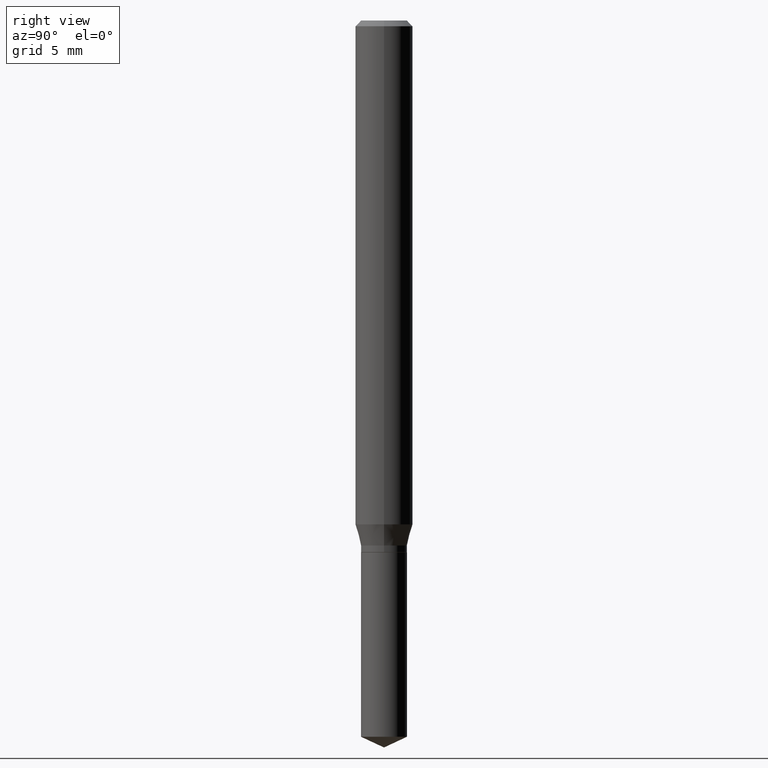
[diagram: clean part render]
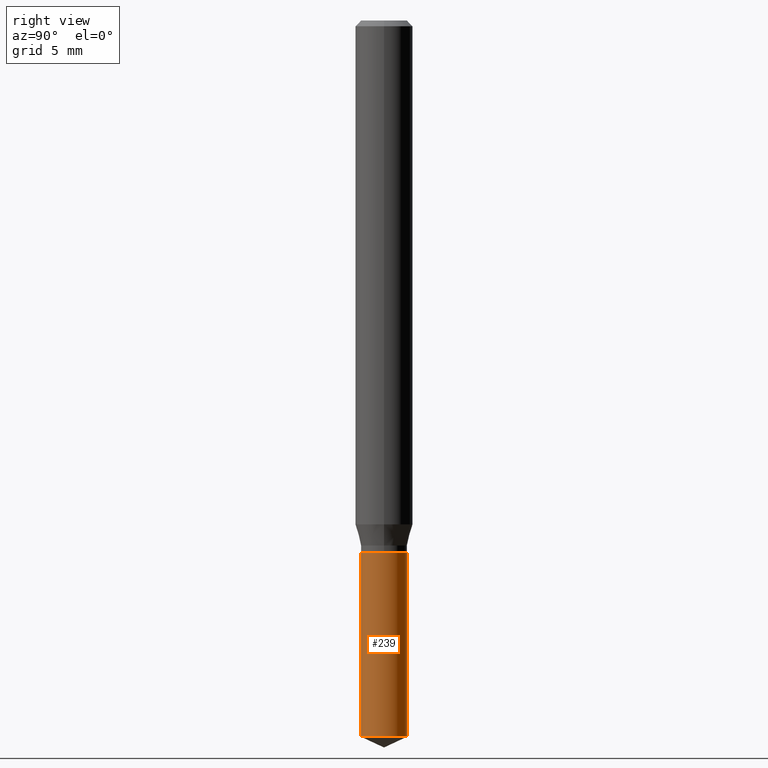
[diagram: same view with one face highlighted and labeled with its STEP entity id]
A machine part, right view. The second image highlights one B-rep face of the part: STEP entity #239.
In plain terms, the highlighted cylindrical surface (edge-blend (fillet) strip) has radius 1.2052 mm, axis along (-0, 0, 1).
Its self-contained STEP definition (entity closure, byte-faithful):
#11 = VECTOR ( 'NONE', #68, 39.37007874015748143 ) ;
#13 = CARTESIAN_POINT ( 'NONE',  ( 2.676565608369631794E-29, -3.821426325363822773E-15, -1.094499999999999806 ) ) ;
#20 = DIRECTION ( 'NONE',  ( -2.445458899330790108E-29, 3.491495526022433599E-15, 1.000000000000000000 ) ) ;
#22 = EDGE_CURVE ( 'NONE', #408, #113, #132, .T. ) ;
#41 = EDGE_CURVE ( 'NONE', #373, #272, #211, .T. ) ;
#68 = DIRECTION ( 'NONE',  ( -2.445458899330790108E-29, 3.491495526022433599E-15, 1.000000000000000000 ) ) ;
#86 = ORIENTED_EDGE ( 'NONE', *, *, #198, .F. ) ;
#88 = DIRECTION ( 'NONE',  ( -2.445458899330790108E-29, 3.491495526022433205E-15, 1.000000000000000000 ) ) ;
#104 = CARTESIAN_POINT ( 'NONE',  ( 3.371525281182035237E-16, 0.04744999999999616885, -1.094500000000000028 ) ) ;
#113 = VERTEX_POINT ( 'NONE', #104 ) ;
#130 = DIRECTION ( 'NONE',  ( -6.982962677686266711E-15, -1.000000000000000000, 5.757319270103822354E-15 ) ) ;
#132 = CIRCLE ( 'NONE', #338, 0.04744999999999999218 ) ;
#186 = CARTESIAN_POINT ( 'NONE',  ( 3.371525281182034744E-16, 0.04744999999999483659, -1.473973701620545418 ) ) ;
#198 = EDGE_CURVE ( 'NONE', #373, #408, #214, .T. ) ;
#211 = CIRCLE ( 'NONE', #414, 0.04744999999999999218 ) ;
#214 = LINE ( 'NONE', #351, #449 ) ;
#221 = EDGE_LOOP ( 'NONE', ( #454, #364, #440, #86 ) ) ;
#224 = CARTESIAN_POINT ( 'NONE',  ( 2.676565608369631794E-29, -3.821426325363822773E-15, -1.094499999999999806 ) ) ;
#228 = DIRECTION ( 'NONE',  ( -6.982962677686266711E-15, -1.000000000000000000, 2.878659635051911177E-15 ) ) ;
#239 = ADVANCED_FACE ( 'NONE', ( #316 ), #475, .T. ) ;
#243 = DIRECTION ( 'NONE',  ( -6.982962677686266711E-15, -1.000000000000000000, 2.878659635051911177E-15 ) ) ;
#254 = LINE ( 'NONE', #259, #11 ) ;
#259 = CARTESIAN_POINT ( 'NONE',  ( 3.371525281181942053E-16, 0.04744999999999616885, -1.094500000000000028 ) ) ;
#263 = EDGE_CURVE ( 'NONE', #272, #113, #254, .T. ) ;
#272 = VERTEX_POINT ( 'NONE', #186 ) ;
#281 = CARTESIAN_POINT ( 'NONE',  ( 3.604552949059590582E-29, -5.146357056815127930E-15, -1.473973701620545196 ) ) ;
#303 = CARTESIAN_POINT ( 'NONE',  ( -3.313415790561865369E-16, -0.04745000000000382245, -1.094499999999999806 ) ) ;
#316 = FACE_OUTER_BOUND ( 'NONE', #221, .T. ) ;
#317 = AXIS2_PLACEMENT_3D ( 'NONE', #13, #88, #243 ) ;
#338 = AXIS2_PLACEMENT_3D ( 'NONE', #224, #419, #228 ) ;
#351 = CARTESIAN_POINT ( 'NONE',  ( -3.313415790561865369E-16, -0.04745000000000382245, -1.094499999999999806 ) ) ;
#364 = ORIENTED_EDGE ( 'NONE', *, *, #263, .T. ) ;
#373 = VERTEX_POINT ( 'NONE', #424 ) ;
#400 = DIRECTION ( 'NONE',  ( -2.445458899330790108E-29, 3.491495526022433205E-15, 1.000000000000000000 ) ) ;
#408 = VERTEX_POINT ( 'NONE', #303 ) ;
#414 = AXIS2_PLACEMENT_3D ( 'NONE', #281, #400, #130 ) ;
#419 = DIRECTION ( 'NONE',  ( -2.445458899330790108E-29, 3.491495526022433205E-15, 1.000000000000000000 ) ) ;
#424 = CARTESIAN_POINT ( 'NONE',  ( -3.313415790561772185E-16, -0.04745000000000514084, -1.473973701620544752 ) ) ;
#440 = ORIENTED_EDGE ( 'NONE', *, *, #22, .F. ) ;
#449 = VECTOR ( 'NONE', #20, 39.37007874015748143 ) ;
#454 = ORIENTED_EDGE ( 'NONE', *, *, #41, .T. ) ;
#475 = CYLINDRICAL_SURFACE ( 'NONE', #317, 0.04744999999999999218 ) ;